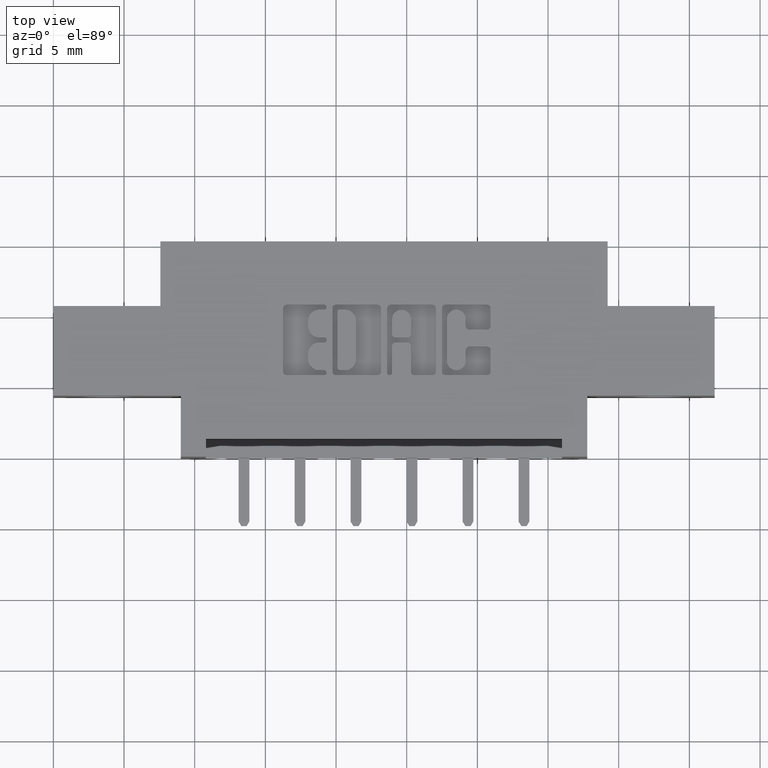
[diagram: clean part render]
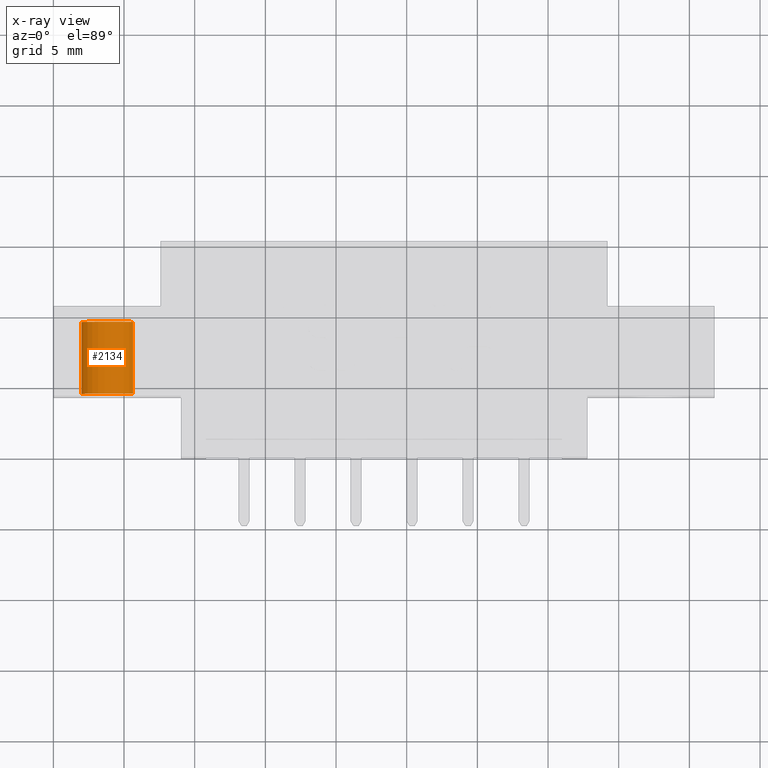
[diagram: x-ray — body ghosted, one internal face saturated and labeled with its STEP entity id]
A machine part, top view, then the same camera in x-ray: the body is ghosted and one INTERNAL B-rep face — a face not visible from any outside direction — is saturated and labeled: STEP entity #2134.
In plain terms, the highlighted cylindrical surface (edge-blend (fillet) strip) has radius 1.9685 mm, axis along (0, 1, -0).
Its self-contained STEP definition (entity closure, byte-faithful):
#571 = DIRECTION ( 'NONE',  ( -0.0000000000000000000, -1.000000000000000000, -0.0000000000000000000 ) ) ;
#587 = CARTESIAN_POINT ( 'NONE',  ( 0.0000000000000000000, 0.2400000000000000500, -0.07749999999999999900 ) ) ;
#836 = VERTEX_POINT ( 'NONE', #1450 ) ;
#1047 = VECTOR ( 'NONE', #7950, 39.37007874015748100 ) ;
#1450 = CARTESIAN_POINT ( 'NONE',  ( 9.491012693391986400E-018, 0.04000000000000000100, 0.07749999999999999900 ) ) ;
#2111 = AXIS2_PLACEMENT_3D ( 'NONE', #4490, #6199, #3784 ) ;
#2134 = ADVANCED_FACE ( 'NONE', ( #6868 ), #8278, .T. ) ;
#2698 = CARTESIAN_POINT ( 'NONE',  ( 0.0000000000000000000, 0.2400000000000000500, 0.0000000000000000000 ) ) ;
#2975 = CIRCLE ( 'NONE', #3675, 0.07749999999999999900 ) ;
#2993 = CARTESIAN_POINT ( 'NONE',  ( 9.491012693391986400E-018, 0.2400000000000000500, 0.07749999999999999900 ) ) ;
#3255 = ORIENTED_EDGE ( 'NONE', *, *, #5399, .T. ) ;
#3357 = CARTESIAN_POINT ( 'NONE',  ( 0.0000000000000000000, 0.04000000000000000100, -0.07749999999999999900 ) ) ;
#3508 = DIRECTION ( 'NONE',  ( 0.0000000000000000000, 0.0000000000000000000, 1.000000000000000000 ) ) ;
#3675 = AXIS2_PLACEMENT_3D ( 'NONE', #2698, #8395, #3508 ) ;
#3784 = DIRECTION ( 'NONE',  ( 0.0000000000000000000, 0.0000000000000000000, 1.000000000000000000 ) ) ;
#3839 = DIRECTION ( 'NONE',  ( 0.0000000000000000000, 0.0000000000000000000, -1.000000000000000000 ) ) ;
#4490 = CARTESIAN_POINT ( 'NONE',  ( 0.0000000000000000000, 0.04000000000000000100, 0.0000000000000000000 ) ) ;
#4646 = CARTESIAN_POINT ( 'NONE',  ( 0.0000000000000000000, 0.2400000000000000500, -0.07749999999999999900 ) ) ;
#4921 = ORIENTED_EDGE ( 'NONE', *, *, #7675, .F. ) ;
#5118 = LINE ( 'NONE', #4646, #1047 ) ;
#5232 = DIRECTION ( 'NONE',  ( -0.0000000000000000000, -1.000000000000000000, -0.0000000000000000000 ) ) ;
#5399 = EDGE_CURVE ( 'NONE', #6946, #836, #8062, .T. ) ;
#5642 = EDGE_LOOP ( 'NONE', ( #7836, #3255, #9969, #4921 ) ) ;
#5893 = VERTEX_POINT ( 'NONE', #3357 ) ;
#6095 = EDGE_CURVE ( 'NONE', #836, #5893, #9493, .T. ) ;
#6199 = DIRECTION ( 'NONE',  ( 0.0000000000000000000, 1.000000000000000000, 0.0000000000000000000 ) ) ;
#6719 = CARTESIAN_POINT ( 'NONE',  ( 9.491012693391986400E-018, 0.2400000000000000500, 0.07749999999999999900 ) ) ;
#6868 = FACE_OUTER_BOUND ( 'NONE', #5642, .T. ) ;
#6946 = VERTEX_POINT ( 'NONE', #2993 ) ;
#7432 = EDGE_CURVE ( 'NONE', #6946, #7633, #2975, .T. ) ;
#7633 = VERTEX_POINT ( 'NONE', #587 ) ;
#7667 = AXIS2_PLACEMENT_3D ( 'NONE', #10321, #571, #3839 ) ;
#7675 = EDGE_CURVE ( 'NONE', #7633, #5893, #5118, .T. ) ;
#7692 = VECTOR ( 'NONE', #5232, 39.37007874015748100 ) ;
#7836 = ORIENTED_EDGE ( 'NONE', *, *, #7432, .F. ) ;
#7950 = DIRECTION ( 'NONE',  ( -0.0000000000000000000, -1.000000000000000000, -0.0000000000000000000 ) ) ;
#8062 = LINE ( 'NONE', #6719, #7692 ) ;
#8278 = CYLINDRICAL_SURFACE ( 'NONE', #7667, 0.07749999999999999900 ) ;
#8395 = DIRECTION ( 'NONE',  ( 0.0000000000000000000, 1.000000000000000000, 0.0000000000000000000 ) ) ;
#9493 = CIRCLE ( 'NONE', #2111, 0.07749999999999999900 ) ;
#9969 = ORIENTED_EDGE ( 'NONE', *, *, #6095, .T. ) ;
#10321 = CARTESIAN_POINT ( 'NONE',  ( 0.0000000000000000000, 0.2400000000000000500, 0.0000000000000000000 ) ) ;